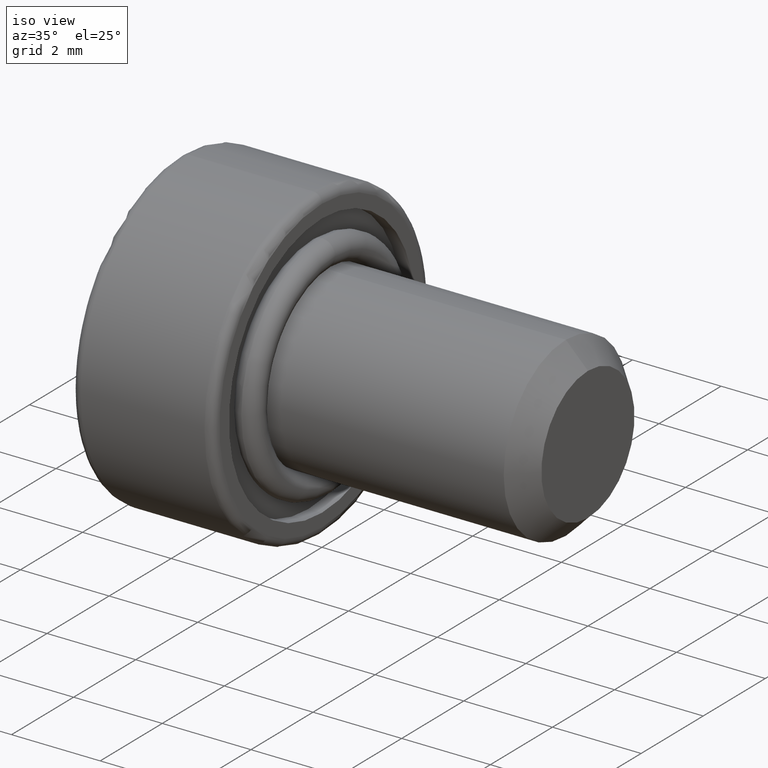
[diagram: clean part render]
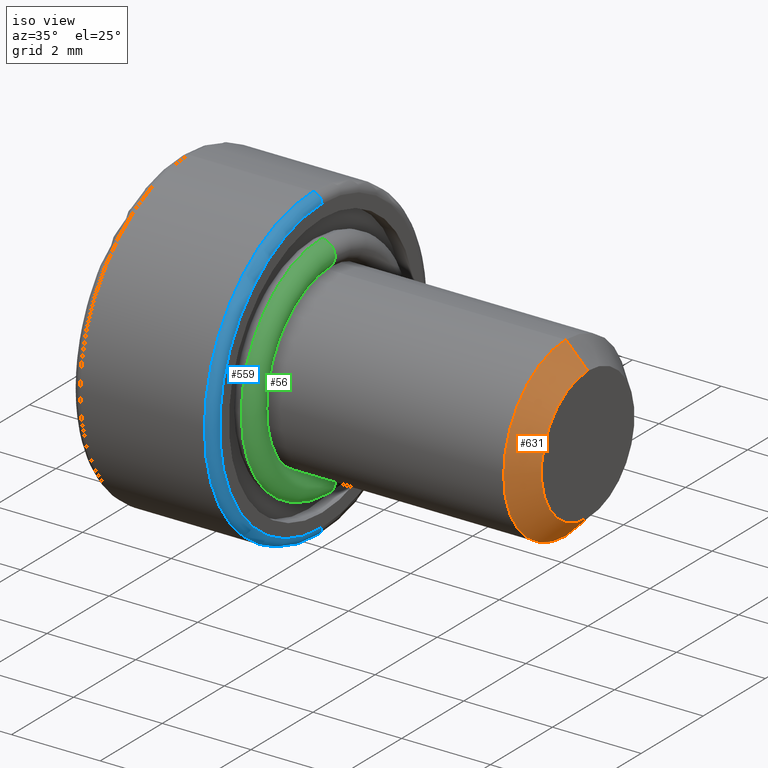
[diagram: same view with three faces highlighted in distinct colors, each labeled with its STEP entity id]
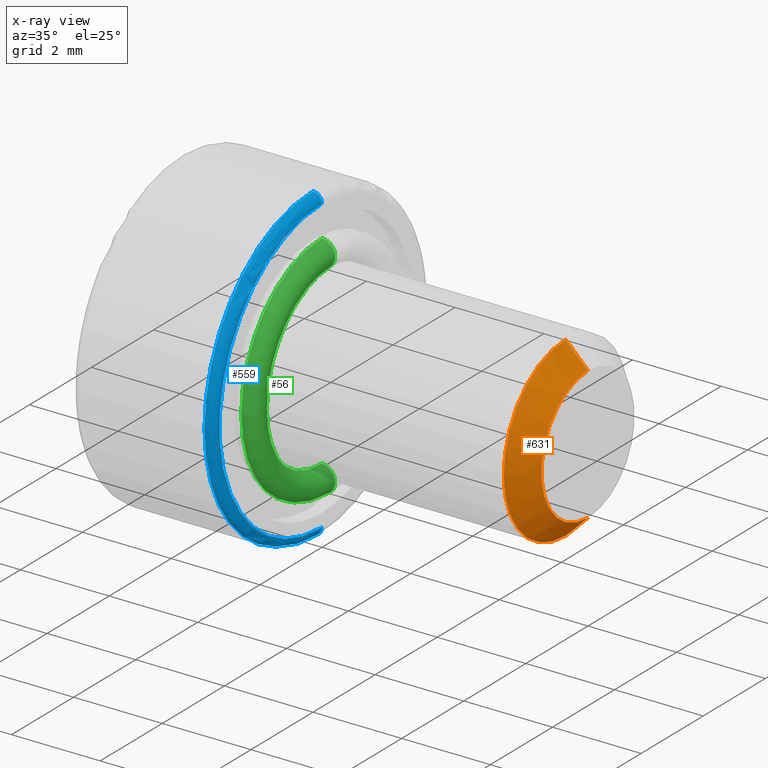
[diagram: x-ray of the same camera — body ghosted, the three highlighted faces saturated]
A machine part, iso view with three faces highlighted in distinct colors.
The next image is the same camera in x-ray (body ghosted, the three faces saturated) — at least one of them is partly hidden behind the body in this view.
Their STEP definitions:

[orange] entity #631 — the highlighted conical surface has half-angle 45 deg.
#28 = VECTOR ( 'NONE', #260, 1000.000000000000000 ) ;
#33 = VERTEX_POINT ( 'NONE', #428 ) ;
#38 = CARTESIAN_POINT ( 'NONE',  ( 6.000000000000000000, 0.0000000000000000000, 1.499999999999999600 ) ) ;
#42 = VECTOR ( 'NONE', #542, 1000.000000000000000 ) ;
#66 = CARTESIAN_POINT ( 'NONE',  ( 6.000000000000000000, 0.0000000000000000000, 0.0000000000000000000 ) ) ;
#75 = ORIENTED_EDGE ( 'NONE', *, *, #169, .F. ) ;
#102 = EDGE_LOOP ( 'NONE', ( #75, #283, #813, #689 ) ) ;
#139 = DIRECTION ( 'NONE',  ( 0.0000000000000000000, 0.0000000000000000000, -1.000000000000000000 ) ) ;
#169 = EDGE_CURVE ( 'NONE', #33, #478, #342, .T. ) ;
#195 = CARTESIAN_POINT ( 'NONE',  ( 5.499999999999998200, 0.0000000000000000000, 2.000000000000000000 ) ) ;
#198 = AXIS2_PLACEMENT_3D ( 'NONE', #768, #325, #698 ) ;
#199 = CARTESIAN_POINT ( 'NONE',  ( 5.499999999999998200, 2.449293598294706900E-016, -2.000000000000000000 ) ) ;
#260 = DIRECTION ( 'NONE',  ( -0.7071067811865487900, 8.659560562354918100E-017, -0.7071067811865463500 ) ) ;
#268 = VERTEX_POINT ( 'NONE', #438 ) ;
#283 = ORIENTED_EDGE ( 'NONE', *, *, #678, .F. ) ;
#325 = DIRECTION ( 'NONE',  ( -1.000000000000000000, 0.0000000000000000000, 0.0000000000000000000 ) ) ;
#330 = DIRECTION ( 'NONE',  ( -1.000000000000000000, 0.0000000000000000000, 0.0000000000000000000 ) ) ;
#335 = DIRECTION ( 'NONE',  ( 0.0000000000000000000, 0.0000000000000000000, 1.000000000000000000 ) ) ;
#342 = LINE ( 'NONE', #493, #28 ) ;
#366 = LINE ( 'NONE', #38, #42 ) ;
#378 = DIRECTION ( 'NONE',  ( 1.000000000000000000, 0.0000000000000000000, 0.0000000000000000000 ) ) ;
#417 = CONICAL_SURFACE ( 'NONE', #620, 1.499999999999999600, 0.7853981633974466100 ) ;
#428 = CARTESIAN_POINT ( 'NONE',  ( 6.000000000000000000, 2.143131898507867800E-016, -1.499999999999999600 ) ) ;
#438 = CARTESIAN_POINT ( 'NONE',  ( 6.000000000000000000, 0.0000000000000000000, 1.499999999999999600 ) ) ;
#464 = EDGE_CURVE ( 'NONE', #478, #793, #569, .T. ) ;
#478 = VERTEX_POINT ( 'NONE', #199 ) ;
#479 = FACE_OUTER_BOUND ( 'NONE', #102, .T. ) ;
#493 = CARTESIAN_POINT ( 'NONE',  ( 6.000000000000000000, 1.836970198721029400E-016, -1.499999999999999600 ) ) ;
#513 = EDGE_CURVE ( 'NONE', #268, #793, #366, .T. ) ;
#542 = DIRECTION ( 'NONE',  ( -0.7071067811865487900, 0.0000000000000000000, 0.7071067811865463500 ) ) ;
#569 = CIRCLE ( 'NONE', #198, 2.000000000000000000 ) ;
#620 = AXIS2_PLACEMENT_3D ( 'NONE', #707, #330, #335 ) ;
#631 = ADVANCED_FACE ( 'NONE', ( #479 ), #417, .T. ) ;
#678 = EDGE_CURVE ( 'NONE', #268, #33, #749, .T. ) ;
#689 = ORIENTED_EDGE ( 'NONE', *, *, #464, .F. ) ;
#698 = DIRECTION ( 'NONE',  ( 0.0000000000000000000, 0.0000000000000000000, -1.000000000000000000 ) ) ;
#707 = CARTESIAN_POINT ( 'NONE',  ( 6.000000000000000000, 0.0000000000000000000, 0.0000000000000000000 ) ) ;
#749 = CIRCLE ( 'NONE', #803, 1.499999999999999600 ) ;
#768 = CARTESIAN_POINT ( 'NONE',  ( 5.499999999999998200, 0.0000000000000000000, 0.0000000000000000000 ) ) ;
#793 = VERTEX_POINT ( 'NONE', #195 ) ;
#803 = AXIS2_PLACEMENT_3D ( 'NONE', #66, #378, #139 ) ;
#813 = ORIENTED_EDGE ( 'NONE', *, *, #513, .T. ) ;

[blue] entity #559 — the highlighted toroidal blend (fillet) surface has major radius 3.3 mm and minor (blend) radius 0.2 mm.
#68 = AXIS2_PLACEMENT_3D ( 'NONE', #646, #201, #573 ) ;
#80 = CARTESIAN_POINT ( 'NONE',  ( -0.2000000000000000900, 0.0000000000000000000, -3.500000000000000400 ) ) ;
#98 = DIRECTION ( 'NONE',  ( 1.000000000000000000, 0.0000000000000000000, 0.0000000000000000000 ) ) ;
#99 = VERTEX_POINT ( 'NONE', #812 ) ;
#120 = ORIENTED_EDGE ( 'NONE', *, *, #368, .F. ) ;
#156 = DIRECTION ( 'NONE',  ( 0.0000000000000000000, 0.0000000000000000000, -1.000000000000000000 ) ) ;
#170 = CIRCLE ( 'NONE', #446, 0.2000000000000000900 ) ;
#172 = DIRECTION ( 'NONE',  ( 1.000000000000000000, 0.0000000000000000000, 0.0000000000000000000 ) ) ;
#197 = EDGE_LOOP ( 'NONE', ( #411, #120, #774, #307 ) ) ;
#201 = DIRECTION ( 'NONE',  ( 0.0000000000000000000, -1.000000000000000000, 0.0000000000000000000 ) ) ;
#211 = CARTESIAN_POINT ( 'NONE',  ( -0.2000000000000000900, 0.0000000000000000000, 0.0000000000000000000 ) ) ;
#237 = AXIS2_PLACEMENT_3D ( 'NONE', #672, #172, #609 ) ;
#262 = CIRCLE ( 'NONE', #68, 0.2000000000000000900 ) ;
#307 = ORIENTED_EDGE ( 'NONE', *, *, #501, .F. ) ;
#316 = VERTEX_POINT ( 'NONE', #409 ) ;
#368 = EDGE_CURVE ( 'NONE', #394, #625, #490, .T. ) ;
#394 = VERTEX_POINT ( 'NONE', #80 ) ;
#404 = CIRCLE ( 'NONE', #237, 3.300000000000000300 ) ;
#407 = CARTESIAN_POINT ( 'NONE',  ( -0.2000000000000000900, 4.041334437186266000E-016, 3.300000000000000300 ) ) ;
#409 = CARTESIAN_POINT ( 'NONE',  ( 0.0000000000000000000, 0.0000000000000000000, -3.300000000000000300 ) ) ;
#411 = ORIENTED_EDGE ( 'NONE', *, *, #564, .F. ) ;
#446 = AXIS2_PLACEMENT_3D ( 'NONE', #407, #794, #725 ) ;
#452 = EDGE_CURVE ( 'NONE', #394, #316, #262, .T. ) ;
#477 = CARTESIAN_POINT ( 'NONE',  ( -0.2000000000000000900, 0.0000000000000000000, 0.0000000000000000000 ) ) ;
#490 = CIRCLE ( 'NONE', #545, 3.500000000000000400 ) ;
#501 = EDGE_CURVE ( 'NONE', #99, #316, #404, .T. ) ;
#534 = CARTESIAN_POINT ( 'NONE',  ( -0.2000000000000000900, 4.286263797015737100E-016, 3.500000000000000400 ) ) ;
#535 = AXIS2_PLACEMENT_3D ( 'NONE', #477, #98, #666 ) ;
#545 = AXIS2_PLACEMENT_3D ( 'NONE', #211, #588, #156 ) ;
#559 = ADVANCED_FACE ( 'NONE', ( #668 ), #782, .T. ) ;
#564 = EDGE_CURVE ( 'NONE', #625, #99, #170, .T. ) ;
#573 = DIRECTION ( 'NONE',  ( 0.0000000000000000000, 0.0000000000000000000, -1.000000000000000000 ) ) ;
#588 = DIRECTION ( 'NONE',  ( -1.000000000000000000, -0.0000000000000000000, -0.0000000000000000000 ) ) ;
#609 = DIRECTION ( 'NONE',  ( 0.0000000000000000000, 0.0000000000000000000, -1.000000000000000000 ) ) ;
#625 = VERTEX_POINT ( 'NONE', #534 ) ;
#646 = CARTESIAN_POINT ( 'NONE',  ( -0.2000000000000000900, 0.0000000000000000000, -3.300000000000000300 ) ) ;
#666 = DIRECTION ( 'NONE',  ( 0.0000000000000000000, 0.0000000000000000000, -1.000000000000000000 ) ) ;
#668 = FACE_OUTER_BOUND ( 'NONE', #197, .T. ) ;
#672 = CARTESIAN_POINT ( 'NONE',  ( 0.0000000000000000000, 0.0000000000000000000, 0.0000000000000000000 ) ) ;
#725 = DIRECTION ( 'NONE',  ( 0.0000000000000000000, 1.224646799147353200E-016, 1.000000000000000000 ) ) ;
#774 = ORIENTED_EDGE ( 'NONE', *, *, #452, .T. ) ;
#782 = TOROIDAL_SURFACE ( 'NONE', #535, 3.300000000000000300, 0.2000000000000000100 ) ;
#794 = DIRECTION ( 'NONE',  ( 0.0000000000000000000, 1.000000000000000000, -1.224646799147353200E-016 ) ) ;
#812 = CARTESIAN_POINT ( 'NONE',  ( 0.0000000000000000000, 4.163799117101001500E-016, 3.300000000000000300 ) ) ;

[green] entity #56 — the highlighted toroidal blend (fillet) surface has major radius 2.3 mm and minor (blend) radius 0.3 mm.
#4 = CARTESIAN_POINT ( 'NONE',  ( -3.673940397442057600E-017, 2.449293598294706900E-016, 2.000000000000000400 ) ) ;
#44 = VERTEX_POINT ( 'NONE', #613 ) ;
#56 = ADVANCED_FACE ( 'NONE', ( #606 ), #673, .T. ) ;
#72 = EDGE_CURVE ( 'NONE', #284, #498, #434, .T. ) ;
#76 = CARTESIAN_POINT ( 'NONE',  ( 0.0000000000000000000, 0.0000000000000000000, -2.300000000000000300 ) ) ;
#106 = AXIS2_PLACEMENT_3D ( 'NONE', #639, #801, #355 ) ;
#134 = DIRECTION ( 'NONE',  ( 0.0000000000000000000, 1.000000000000000000, -1.224646799147353200E-016 ) ) ;
#151 = DIRECTION ( 'NONE',  ( 0.0000000000000000000, 0.0000000000000000000, -1.000000000000000000 ) ) ;
#188 = CARTESIAN_POINT ( 'NONE',  ( 0.0000000000000000000, 2.816687638038912500E-016, 2.300000000000000300 ) ) ;
#284 = VERTEX_POINT ( 'NONE', #4 ) ;
#329 = EDGE_CURVE ( 'NONE', #44, #519, #351, .T. ) ;
#351 = CIRCLE ( 'NONE', #466, 2.600000000000000500 ) ;
#355 = DIRECTION ( 'NONE',  ( 0.0000000000000000000, 0.0000000000000000000, -1.000000000000000000 ) ) ;
#359 = CARTESIAN_POINT ( 'NONE',  ( 0.0000000000000000000, 0.0000000000000000000, 0.0000000000000000000 ) ) ;
#434 = CIRCLE ( 'NONE', #106, 2.000000000000000400 ) ;
#447 = CARTESIAN_POINT ( 'NONE',  ( -3.673940397442057600E-017, 0.0000000000000000000, -2.000000000000000400 ) ) ;
#450 = ORIENTED_EDGE ( 'NONE', *, *, #769, .T. ) ;
#454 = EDGE_LOOP ( 'NONE', ( #624, #771, #450, #485 ) ) ;
#466 = AXIS2_PLACEMENT_3D ( 'NONE', #656, #776, #713 ) ;
#485 = ORIENTED_EDGE ( 'NONE', *, *, #72, .F. ) ;
#487 = DIRECTION ( 'NONE',  ( 0.0000000000000000000, 0.0000000000000000000, -1.000000000000000000 ) ) ;
#492 = CIRCLE ( 'NONE', #566, 0.2999999999999999300 ) ;
#498 = VERTEX_POINT ( 'NONE', #447 ) ;
#519 = VERTEX_POINT ( 'NONE', #669 ) ;
#520 = DIRECTION ( 'NONE',  ( -0.0000000000000000000, -1.000000000000000000, -0.0000000000000000000 ) ) ;
#543 = DIRECTION ( 'NONE',  ( 1.000000000000000000, -0.0000000000000000000, -0.0000000000000000000 ) ) ;
#566 = AXIS2_PLACEMENT_3D ( 'NONE', #76, #520, #151 ) ;
#605 = CIRCLE ( 'NONE', #664, 0.2999999999999999300 ) ;
#606 = FACE_OUTER_BOUND ( 'NONE', #454, .T. ) ;
#613 = CARTESIAN_POINT ( 'NONE',  ( 0.0000000000000000000, 3.184081677783118700E-016, 2.600000000000000500 ) ) ;
#624 = ORIENTED_EDGE ( 'NONE', *, *, #629, .F. ) ;
#629 = EDGE_CURVE ( 'NONE', #44, #284, #605, .T. ) ;
#639 = CARTESIAN_POINT ( 'NONE',  ( -3.673940397442058300E-017, 0.0000000000000000000, 0.0000000000000000000 ) ) ;
#654 = DIRECTION ( 'NONE',  ( 0.0000000000000000000, 1.224646799147353200E-016, 1.000000000000000000 ) ) ;
#656 = CARTESIAN_POINT ( 'NONE',  ( 0.0000000000000000000, 0.0000000000000000000, 0.0000000000000000000 ) ) ;
#664 = AXIS2_PLACEMENT_3D ( 'NONE', #188, #134, #654 ) ;
#669 = CARTESIAN_POINT ( 'NONE',  ( 0.0000000000000000000, 0.0000000000000000000, -2.600000000000000500 ) ) ;
#673 = TOROIDAL_SURFACE ( 'NONE', #800, 2.300000000000000300, 0.2999999999999998800 ) ;
#713 = DIRECTION ( 'NONE',  ( 0.0000000000000000000, 0.0000000000000000000, -1.000000000000000000 ) ) ;
#769 = EDGE_CURVE ( 'NONE', #519, #498, #492, .T. ) ;
#771 = ORIENTED_EDGE ( 'NONE', *, *, #329, .T. ) ;
#776 = DIRECTION ( 'NONE',  ( 1.000000000000000000, -0.0000000000000000000, -0.0000000000000000000 ) ) ;
#800 = AXIS2_PLACEMENT_3D ( 'NONE', #359, #543, #487 ) ;
#801 = DIRECTION ( 'NONE',  ( 1.000000000000000000, -0.0000000000000000000, -0.0000000000000000000 ) ) ;